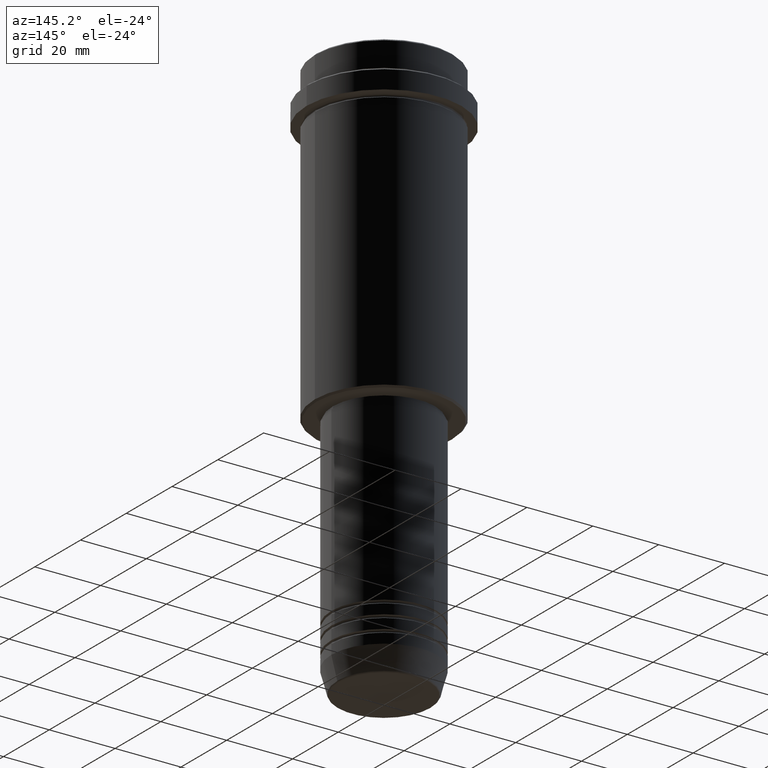
[diagram: clean part render]
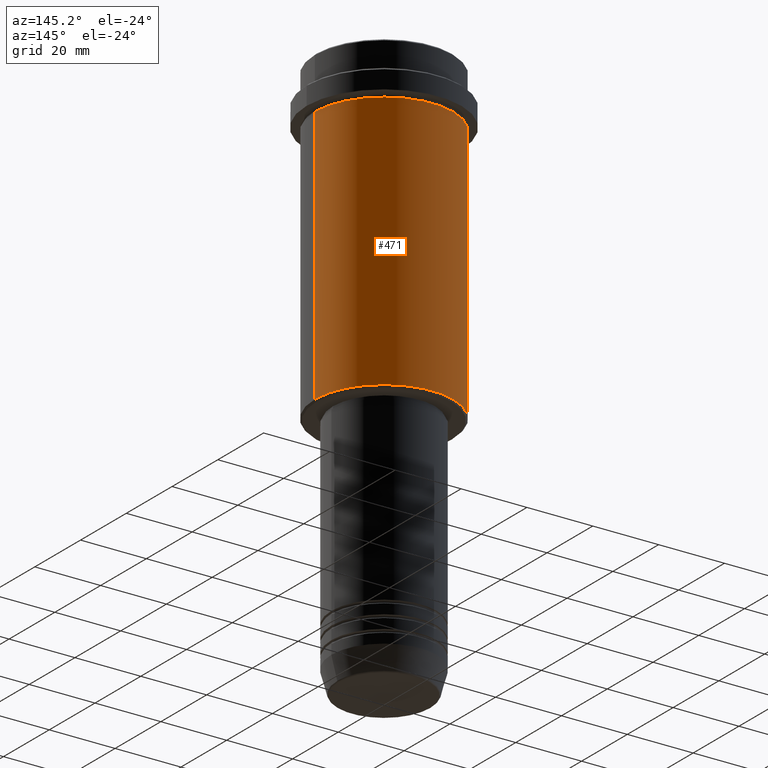
[diagram: same view with one face highlighted and labeled with its STEP entity id]
A machine part, auxiliary view. The second image highlights one B-rep face of the part: STEP entity #471.
In plain terms, the highlighted cylindrical surface (partial cylindrical patch) has radius 21 mm, axis along (-0, -0, 1).
Its self-contained STEP definition (entity closure, byte-faithful):
#27 = DIRECTION ( 'NONE',  ( 1.000000000000000000, 0.000000000000000000, 0.000000000000000000 ) ) ;
#64 = CARTESIAN_POINT ( 'NONE',  ( 21.00000000000000000, 0.000000000000000000, 0.000000000000000000 ) ) ;
#164 = CARTESIAN_POINT ( 'NONE',  ( -21.00000000000000000, 2.571758278209441661E-15, -16.00000000000000355 ) ) ;
#186 = DIRECTION ( 'NONE',  ( -0.000000000000000000, -0.000000000000000000, 1.000000000000000000 ) ) ;
#208 = VERTEX_POINT ( 'NONE', #312 ) ;
#219 = AXIS2_PLACEMENT_3D ( 'NONE', #1005, #341, #27 ) ;
#278 = DIRECTION ( 'NONE',  ( -1.000000000000000000, 0.000000000000000000, 0.000000000000000000 ) ) ;
#312 = CARTESIAN_POINT ( 'NONE',  ( 21.00000000000000000, 0.000000000000000000, -16.00000000000000355 ) ) ;
#334 = ORIENTED_EDGE ( 'NONE', *, *, #1258, .F. ) ;
#341 = DIRECTION ( 'NONE',  ( -0.000000000000000000, -0.000000000000000000, 1.000000000000000000 ) ) ;
#391 = DIRECTION ( 'NONE',  ( -0.000000000000000000, -0.000000000000000000, 1.000000000000000000 ) ) ;
#457 = ORIENTED_EDGE ( 'NONE', *, *, #941, .T. ) ;
#465 = VERTEX_POINT ( 'NONE', #904 ) ;
#471 = ADVANCED_FACE ( 'NONE', ( #1221 ), #560, .T. ) ;
#505 = CIRCLE ( 'NONE', #1000, 21.00000000000000000 ) ;
#558 = VERTEX_POINT ( 'NONE', #1374 ) ;
#560 = CYLINDRICAL_SURFACE ( 'NONE', #219, 21.00000000000000000 ) ;
#598 = CARTESIAN_POINT ( 'NONE',  ( 0.000000000000000000, 0.000000000000000000, -94.50000000000001421 ) ) ;
#614 = CIRCLE ( 'NONE', #1061, 21.00000000000000000 ) ;
#639 = CARTESIAN_POINT ( 'NONE',  ( 0.000000000000000000, 0.000000000000000000, -16.00000000000000355 ) ) ;
#668 = ORIENTED_EDGE ( 'NONE', *, *, #1314, .F. ) ;
#678 = ORIENTED_EDGE ( 'NONE', *, *, #1272, .T. ) ;
#717 = LINE ( 'NONE', #1170, #937 ) ;
#728 = DIRECTION ( 'NONE',  ( -0.000000000000000000, -0.000000000000000000, 1.000000000000000000 ) ) ;
#734 = VECTOR ( 'NONE', #728, 1000.000000000000000 ) ;
#904 = CARTESIAN_POINT ( 'NONE',  ( -21.00000000000000000, 2.571758278209441661E-15, -94.50000000000001421 ) ) ;
#937 = VECTOR ( 'NONE', #186, 1000.000000000000000 ) ;
#941 = EDGE_CURVE ( 'NONE', #558, #465, #614, .T. ) ;
#1000 = AXIS2_PLACEMENT_3D ( 'NONE', #639, #1064, #1300 ) ;
#1005 = CARTESIAN_POINT ( 'NONE',  ( 0.000000000000000000, 0.000000000000000000, 0.000000000000000000 ) ) ;
#1061 = AXIS2_PLACEMENT_3D ( 'NONE', #598, #391, #278 ) ;
#1064 = DIRECTION ( 'NONE',  ( -0.000000000000000000, -0.000000000000000000, 1.000000000000000000 ) ) ;
#1170 = CARTESIAN_POINT ( 'NONE',  ( -21.00000000000000000, 2.571758278209441661E-15, 0.000000000000000000 ) ) ;
#1173 = LINE ( 'NONE', #64, #734 ) ;
#1218 = VERTEX_POINT ( 'NONE', #164 ) ;
#1221 = FACE_OUTER_BOUND ( 'NONE', #1301, .T. ) ;
#1258 = EDGE_CURVE ( 'NONE', #558, #208, #1173, .T. ) ;
#1272 = EDGE_CURVE ( 'NONE', #465, #1218, #717, .T. ) ;
#1300 = DIRECTION ( 'NONE',  ( 1.000000000000000000, 0.000000000000000000, 0.000000000000000000 ) ) ;
#1301 = EDGE_LOOP ( 'NONE', ( #457, #678, #668, #334 ) ) ;
#1314 = EDGE_CURVE ( 'NONE', #208, #1218, #505, .T. ) ;
#1374 = CARTESIAN_POINT ( 'NONE',  ( 21.00000000000000000, 0.000000000000000000, -94.50000000000001421 ) ) ;